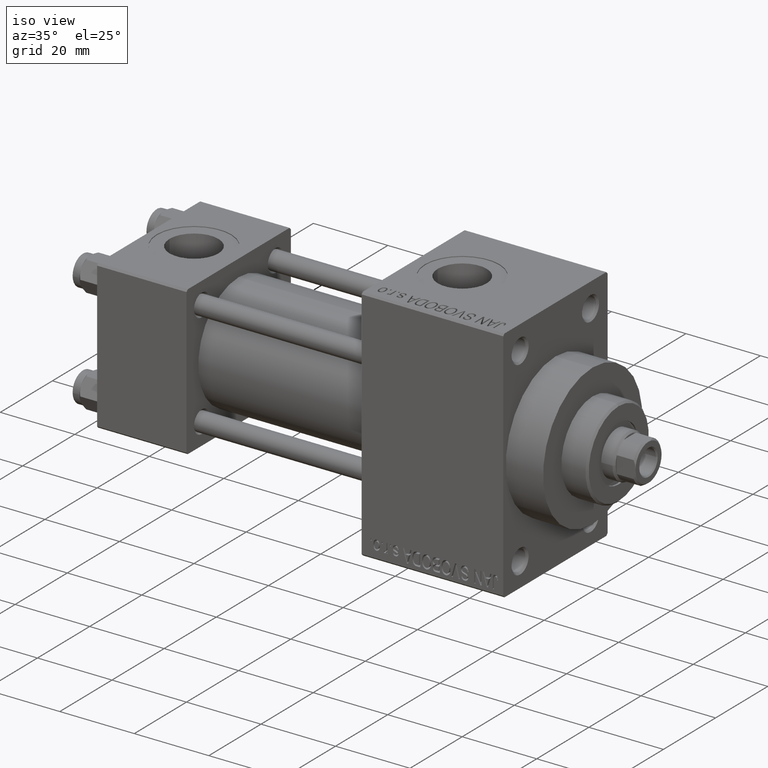
[diagram: clean part render]
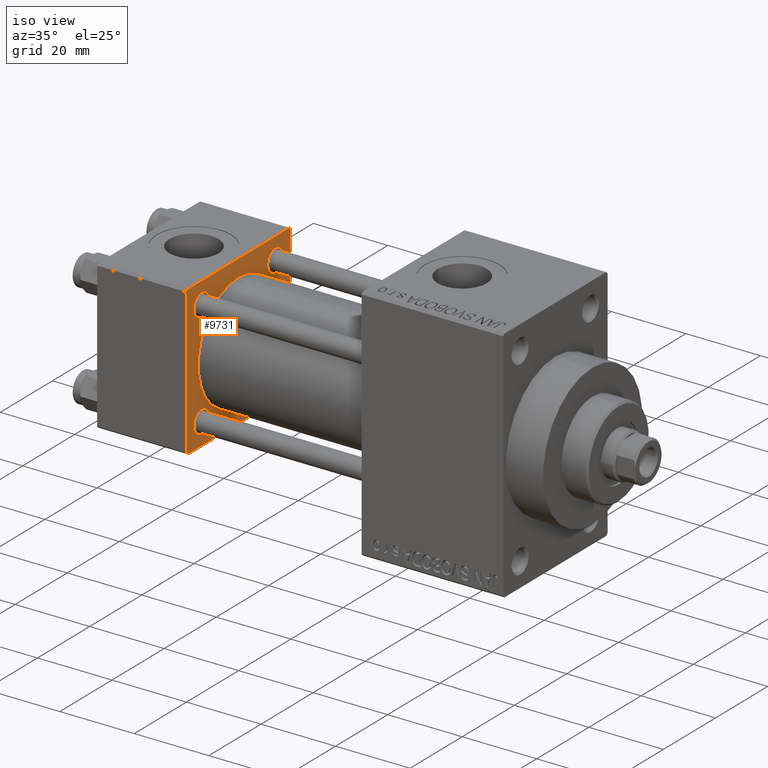
[diagram: same view with one face highlighted and labeled with its STEP entity id]
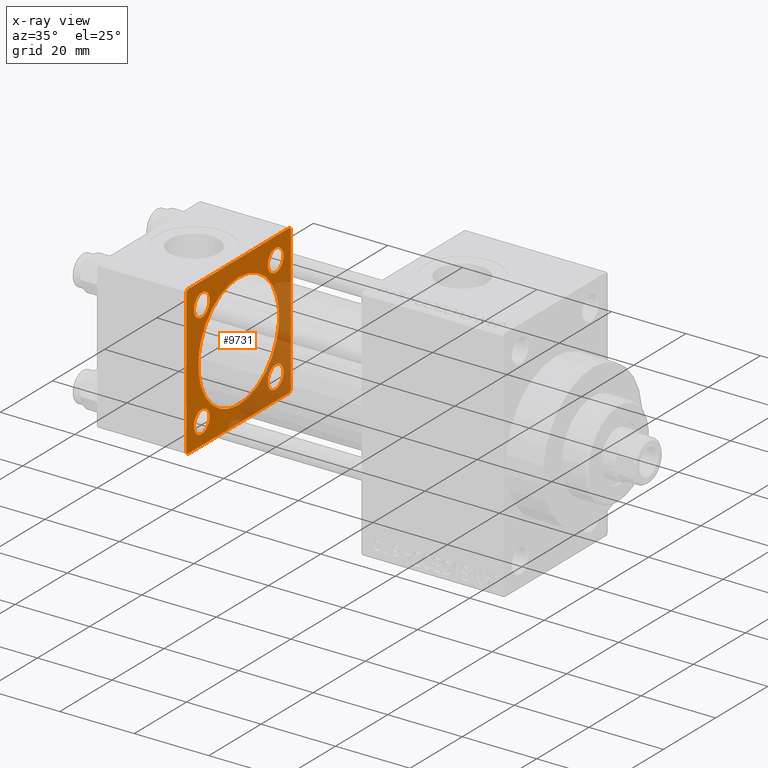
[diagram: x-ray of the same camera — body ghosted, the highlighted face saturated]
A machine part, iso view. The second image highlights one B-rep face of the part: STEP entity #9731.
The next image is the same camera in x-ray: the body ghosted, the highlighted face saturated — about 30% of this face is hidden behind the body in this view.
In plain terms, the highlighted planar face has unit normal (-1, 0, 0).
Its self-contained STEP definition (entity closure, byte-faithful):
#61 = VERTEX_POINT ( 'NONE', #25710 ) ;
#901 = EDGE_CURVE ( 'NONE', #31542, #16962, #4301, .T. ) ;
#1168 = LINE ( 'NONE', #4012, #26812 ) ;
#1206 = CARTESIAN_POINT ( 'NONE',  ( 24.00000000000000000, 14.14999999999999858, 11.15000000000005365 ) ) ;
#1262 = CIRCLE ( 'NONE', #6594, 2.999999999999976463 ) ;
#1722 = EDGE_CURVE ( 'NONE', #61, #27730, #8232, .T. ) ;
#2106 = VERTEX_POINT ( 'NONE', #26173 ) ;
#2162 = ORIENTED_EDGE ( 'NONE', *, *, #39699, .T. ) ;
#2464 = CARTESIAN_POINT ( 'NONE',  ( 24.00000000000000000, 20.00000000000000000, -19.50000000000002132 ) ) ;
#2469 = AXIS2_PLACEMENT_3D ( 'NONE', #13292, #42334, #9730 ) ;
#2733 = CARTESIAN_POINT ( 'NONE',  ( 24.00000000000000000, 14.14999999999999858, 14.15000000000000036 ) ) ;
#2842 = DIRECTION ( 'NONE',  ( 0.000000000000000000, -0.7071067811865425767, 0.7071067811865525687 ) ) ;
#3240 = CARTESIAN_POINT ( 'NONE',  ( 24.00000000000000000, 20.00000000000000000, 20.00000000000000000 ) ) ;
#3661 = CARTESIAN_POINT ( 'NONE',  ( 24.00000000000000000, -2.602085213965210642E-15, 0.000000000000000000 ) ) ;
#3776 = DIRECTION ( 'NONE',  ( -0.000000000000000000, -0.7071067811865500152, -0.7071067811865451302 ) ) ;
#4012 = CARTESIAN_POINT ( 'NONE',  ( 24.00000000000000000, -20.00000000000000355, 19.49999999999998224 ) ) ;
#4301 = LINE ( 'NONE', #28843, #17314 ) ;
#4715 = DIRECTION ( 'NONE',  ( 0.000000000000000000, -1.000000000000000000, -2.602085213965210149E-16 ) ) ;
#5396 = CIRCLE ( 'NONE', #20596, 2.999999999999976463 ) ;
#5531 = FACE_BOUND ( 'NONE', #27579, .T. ) ;
#5767 = FACE_BOUND ( 'NONE', #8398, .T. ) ;
#5785 = CARTESIAN_POINT ( 'NONE',  ( 24.00000000000000000, 20.00000000000000000, 19.49999999999999289 ) ) ;
#6236 = VECTOR ( 'NONE', #4715, 1000.000000000000000 ) ;
#6594 = AXIS2_PLACEMENT_3D ( 'NONE', #15559, #22475, #33428 ) ;
#6695 = EDGE_CURVE ( 'NONE', #22353, #45691, #1168, .T. ) ;
#7267 = AXIS2_PLACEMENT_3D ( 'NONE', #11672, #37628, #8100 ) ;
#7475 = DIRECTION ( 'NONE',  ( 1.000000000000000000, 0.000000000000000000, 0.000000000000000000 ) ) ;
#7614 = ORIENTED_EDGE ( 'NONE', *, *, #42552, .T. ) ;
#7694 = ORIENTED_EDGE ( 'NONE', *, *, #10138, .F. ) ;
#8100 = DIRECTION ( 'NONE',  ( 0.000000000000000000, 0.000000000000000000, 1.000000000000000000 ) ) ;
#8232 = CIRCLE ( 'NONE', #13533, 15.50000000000000000 ) ;
#8398 = EDGE_LOOP ( 'NONE', ( #2162, #13437 ) ) ;
#8543 = CARTESIAN_POINT ( 'NONE',  ( 24.00000000000000000, 14.14999999999999858, -17.14999999999994884 ) ) ;
#8879 = DIRECTION ( 'NONE',  ( -1.000000000000000000, 0.000000000000000000, -0.000000000000000000 ) ) ;
#9730 = DIRECTION ( 'NONE',  ( 0.000000000000000000, 0.000000000000000000, 1.000000000000000000 ) ) ;
#9731 = ADVANCED_FACE ( 'NONE', ( #12450, #5531, #16722, #5767, #30544, #26981 ), #14031, .F. ) ;
#9856 = CARTESIAN_POINT ( 'NONE',  ( 24.00000000000000000, -14.14999999999999503, 11.15000000000002878 ) ) ;
#10028 = CARTESIAN_POINT ( 'NONE',  ( 24.00000000000000000, -14.14999999999999503, 14.15000000000000391 ) ) ;
#10113 = DIRECTION ( 'NONE',  ( 0.000000000000000000, 0.000000000000000000, 1.000000000000000000 ) ) ;
#10138 = EDGE_CURVE ( 'NONE', #11351, #40199, #21581, .T. ) ;
#10576 = ORIENTED_EDGE ( 'NONE', *, *, #6695, .T. ) ;
#10692 = VECTOR ( 'NONE', #42873, 1000.000000000000000 ) ;
#11351 = VERTEX_POINT ( 'NONE', #5785 ) ;
#11672 = CARTESIAN_POINT ( 'NONE',  ( 24.00000000000000000, -2.602085213965210642E-15, 0.000000000000000000 ) ) ;
#12311 = CARTESIAN_POINT ( 'NONE',  ( 24.00000000000000000, -19.49999999999999289, 19.99999999999998934 ) ) ;
#12450 = FACE_BOUND ( 'NONE', #26435, .T. ) ;
#13292 = CARTESIAN_POINT ( 'NONE',  ( 24.00000000000000000, 14.14999999999999858, 14.15000000000000036 ) ) ;
#13318 = CARTESIAN_POINT ( 'NONE',  ( 24.00000000000000000, 19.50000000000000000, 20.00000000000000000 ) ) ;
#13437 = ORIENTED_EDGE ( 'NONE', *, *, #20389, .T. ) ;
#13533 = AXIS2_PLACEMENT_3D ( 'NONE', #3661, #7475, #14390 ) ;
#13596 = LINE ( 'NONE', #28354, #10692 ) ;
#14013 = EDGE_CURVE ( 'NONE', #42551, #17690, #14853, .T. ) ;
#14031 = PLANE ( 'NONE',  #43590 ) ;
#14390 = DIRECTION ( 'NONE',  ( 0.000000000000000000, 0.000000000000000000, 1.000000000000000000 ) ) ;
#14853 = CIRCLE ( 'NONE', #25501, 2.999999999999976463 ) ;
#14869 = CARTESIAN_POINT ( 'NONE',  ( 24.00000000000000000, -14.14999999999999503, -17.14999999999998082 ) ) ;
#15302 = CARTESIAN_POINT ( 'NONE',  ( 24.00000000000000000, -20.00000000000000355, 19.49999999999998224 ) ) ;
#15559 = CARTESIAN_POINT ( 'NONE',  ( 24.00000000000000000, -14.14999999999999503, -14.15000000000000391 ) ) ;
#15679 = AXIS2_PLACEMENT_3D ( 'NONE', #21749, #39601, #17478 ) ;
#15712 = CIRCLE ( 'NONE', #15679, 2.999999999999945377 ) ;
#15784 = EDGE_CURVE ( 'NONE', #27730, #61, #20991, .T. ) ;
#15923 = EDGE_CURVE ( 'NONE', #11351, #28815, #46407, .T. ) ;
#16627 = CIRCLE ( 'NONE', #37901, 2.999999999999945377 ) ;
#16653 = EDGE_CURVE ( 'NONE', #46396, #37161, #15712, .T. ) ;
#16719 = VERTEX_POINT ( 'NONE', #37215 ) ;
#16722 = FACE_BOUND ( 'NONE', #17488, .T. ) ;
#16962 = VERTEX_POINT ( 'NONE', #42644 ) ;
#17041 = LINE ( 'NONE', #20851, #19910 ) ;
#17102 = VERTEX_POINT ( 'NONE', #1206 ) ;
#17314 = VECTOR ( 'NONE', #33129, 1000.000000000000000 ) ;
#17478 = DIRECTION ( 'NONE',  ( 0.000000000000000000, 0.000000000000000000, 1.000000000000000000 ) ) ;
#17488 = EDGE_LOOP ( 'NONE', ( #7614, #27377 ) ) ;
#17690 = VERTEX_POINT ( 'NONE', #14869 ) ;
#18711 = CARTESIAN_POINT ( 'NONE',  ( 24.00000000000000000, -14.14999999999999503, 14.15000000000000391 ) ) ;
#18976 = CARTESIAN_POINT ( 'NONE',  ( 24.00000000000000000, 14.14999999999999858, -14.15000000000000036 ) ) ;
#19458 = VECTOR ( 'NONE', #2842, 999.9999999999998863 ) ;
#19910 = VECTOR ( 'NONE', #31570, 1000.000000000000000 ) ;
#20389 = EDGE_CURVE ( 'NONE', #2106, #17102, #43157, .T. ) ;
#20575 = EDGE_CURVE ( 'NONE', #17690, #42551, #1262, .T. ) ;
#20596 = AXIS2_PLACEMENT_3D ( 'NONE', #10028, #24098, #27897 ) ;
#20851 = CARTESIAN_POINT ( 'NONE',  ( 24.00000000000000000, -20.00000000000000355, 19.99999999999998934 ) ) ;
#20937 = ORIENTED_EDGE ( 'NONE', *, *, #35197, .T. ) ;
#20991 = CIRCLE ( 'NONE', #7267, 15.50000000000000000 ) ;
#21503 = CIRCLE ( 'NONE', #2469, 2.999999999999945377 ) ;
#21581 = LINE ( 'NONE', #3240, #31456 ) ;
#21749 = CARTESIAN_POINT ( 'NONE',  ( 24.00000000000000000, 14.14999999999999858, -14.15000000000000036 ) ) ;
#22353 = VERTEX_POINT ( 'NONE', #12311 ) ;
#22475 = DIRECTION ( 'NONE',  ( -1.000000000000000000, -0.000000000000000000, -0.000000000000000000 ) ) ;
#22477 = ORIENTED_EDGE ( 'NONE', *, *, #15784, .F. ) ;
#22592 = LINE ( 'NONE', #37339, #6236 ) ;
#22642 = AXIS2_PLACEMENT_3D ( 'NONE', #2733, #31557, #10113 ) ;
#24098 = DIRECTION ( 'NONE',  ( -1.000000000000000000, -0.000000000000000000, -0.000000000000000000 ) ) ;
#25330 = ORIENTED_EDGE ( 'NONE', *, *, #901, .T. ) ;
#25417 = EDGE_CURVE ( 'NONE', #37161, #46396, #16627, .T. ) ;
#25501 = AXIS2_PLACEMENT_3D ( 'NONE', #35388, #46332, #25543 ) ;
#25543 = DIRECTION ( 'NONE',  ( 0.000000000000000000, 0.000000000000000000, 1.000000000000000000 ) ) ;
#25710 = CARTESIAN_POINT ( 'NONE',  ( 24.00000000000000000, -7.038826752868131828E-16, -15.50000000000000000 ) ) ;
#26173 = CARTESIAN_POINT ( 'NONE',  ( 24.00000000000000000, 14.14999999999999858, 17.14999999999994884 ) ) ;
#26435 = EDGE_LOOP ( 'NONE', ( #40524, #35279 ) ) ;
#26805 = VERTEX_POINT ( 'NONE', #9856 ) ;
#26812 = VECTOR ( 'NONE', #3776, 1000.000000000000114 ) ;
#26981 = FACE_OUTER_BOUND ( 'NONE', #31895, .T. ) ;
#27377 = ORIENTED_EDGE ( 'NONE', *, *, #32723, .T. ) ;
#27579 = EDGE_LOOP ( 'NONE', ( #37589, #27601 ) ) ;
#27593 = ORIENTED_EDGE ( 'NONE', *, *, #39501, .T. ) ;
#27601 = ORIENTED_EDGE ( 'NONE', *, *, #16653, .T. ) ;
#27730 = VERTEX_POINT ( 'NONE', #43394 ) ;
#27897 = DIRECTION ( 'NONE',  ( 0.000000000000000000, 0.000000000000000000, 1.000000000000000000 ) ) ;
#28354 = CARTESIAN_POINT ( 'NONE',  ( 24.00000000000000000, 20.00000000000000000, -20.00000000000000711 ) ) ;
#28815 = VERTEX_POINT ( 'NONE', #28931 ) ;
#28843 = CARTESIAN_POINT ( 'NONE',  ( 24.00000000000000000, -19.50000000000000711, -20.00000000000000000 ) ) ;
#28931 = CARTESIAN_POINT ( 'NONE',  ( 24.00000000000000000, 19.50000000000000000, 20.00000000000000000 ) ) ;
#29992 = LINE ( 'NONE', #36413, #40470 ) ;
#30008 = VERTEX_POINT ( 'NONE', #38438 ) ;
#30544 = FACE_BOUND ( 'NONE', #37227, .T. ) ;
#31456 = VECTOR ( 'NONE', #32540, 1000.000000000000000 ) ;
#31542 = VERTEX_POINT ( 'NONE', #40038 ) ;
#31557 = DIRECTION ( 'NONE',  ( -1.000000000000000000, -0.000000000000000000, -0.000000000000000000 ) ) ;
#31570 = DIRECTION ( 'NONE',  ( 0.000000000000000000, 8.673617379884036705E-17, -1.000000000000000000 ) ) ;
#31895 = EDGE_LOOP ( 'NONE', ( #40302, #27593, #7694, #44276, #20937, #10576, #34212, #25330 ) ) ;
#32206 = CIRCLE ( 'NONE', #36005, 2.999999999999976463 ) ;
#32540 = DIRECTION ( 'NONE',  ( 0.000000000000000000, 0.000000000000000000, -1.000000000000000000 ) ) ;
#32720 = EDGE_CURVE ( 'NONE', #16719, #16962, #13596, .T. ) ;
#32723 = EDGE_CURVE ( 'NONE', #30008, #26805, #5396, .T. ) ;
#33129 = DIRECTION ( 'NONE',  ( 0.000000000000000000, 0.7071067811865401342, -0.7071067811865549002 ) ) ;
#33253 = DIRECTION ( 'NONE',  ( -1.000000000000000000, -0.000000000000000000, -0.000000000000000000 ) ) ;
#33428 = DIRECTION ( 'NONE',  ( 0.000000000000000000, 0.000000000000000000, 1.000000000000000000 ) ) ;
#34212 = ORIENTED_EDGE ( 'NONE', *, *, #37736, .T. ) ;
#34661 = DIRECTION ( 'NONE',  ( 0.000000000000000000, 0.000000000000000000, 1.000000000000000000 ) ) ;
#35197 = EDGE_CURVE ( 'NONE', #28815, #22353, #22592, .T. ) ;
#35279 = ORIENTED_EDGE ( 'NONE', *, *, #14013, .T. ) ;
#35388 = CARTESIAN_POINT ( 'NONE',  ( 24.00000000000000000, -14.14999999999999503, -14.15000000000000391 ) ) ;
#36005 = AXIS2_PLACEMENT_3D ( 'NONE', #18711, #33253, #34661 ) ;
#36413 = CARTESIAN_POINT ( 'NONE',  ( 24.00000000000000000, 20.00000000000000000, -19.50000000000002132 ) ) ;
#36578 = ORIENTED_EDGE ( 'NONE', *, *, #1722, .F. ) ;
#36812 = CARTESIAN_POINT ( 'NONE',  ( 24.00000000000000000, -14.14999999999999503, -11.15000000000002878 ) ) ;
#37161 = VERTEX_POINT ( 'NONE', #8543 ) ;
#37215 = CARTESIAN_POINT ( 'NONE',  ( 24.00000000000000000, 19.50000000000000711, -20.00000000000000711 ) ) ;
#37227 = EDGE_LOOP ( 'NONE', ( #22477, #36578 ) ) ;
#37339 = CARTESIAN_POINT ( 'NONE',  ( 24.00000000000000000, 20.00000000000000000, 20.00000000000000000 ) ) ;
#37552 = DIRECTION ( 'NONE',  ( 0.000000000000000000, 0.000000000000000000, 1.000000000000000000 ) ) ;
#37589 = ORIENTED_EDGE ( 'NONE', *, *, #25417, .T. ) ;
#37628 = DIRECTION ( 'NONE',  ( 1.000000000000000000, 0.000000000000000000, 0.000000000000000000 ) ) ;
#37736 = EDGE_CURVE ( 'NONE', #45691, #31542, #17041, .T. ) ;
#37752 = CARTESIAN_POINT ( 'NONE',  ( 24.00000000000000000, 14.14999999999999858, -11.15000000000005365 ) ) ;
#37901 = AXIS2_PLACEMENT_3D ( 'NONE', #18976, #40383, #37552 ) ;
#37922 = CARTESIAN_POINT ( 'NONE',  ( 24.00000000000000000, 0.000000000000000000, 0.000000000000000000 ) ) ;
#38386 = DIRECTION ( 'NONE',  ( -0.000000000000000000, 0.000000000000000000, 1.000000000000000000 ) ) ;
#38438 = CARTESIAN_POINT ( 'NONE',  ( 24.00000000000000000, -14.14999999999999503, 17.14999999999998082 ) ) ;
#39501 = EDGE_CURVE ( 'NONE', #16719, #40199, #29992, .T. ) ;
#39601 = DIRECTION ( 'NONE',  ( -1.000000000000000000, -0.000000000000000000, -0.000000000000000000 ) ) ;
#39699 = EDGE_CURVE ( 'NONE', #17102, #2106, #21503, .T. ) ;
#40038 = CARTESIAN_POINT ( 'NONE',  ( 24.00000000000000000, -20.00000000000000000, -19.49999999999999645 ) ) ;
#40199 = VERTEX_POINT ( 'NONE', #2464 ) ;
#40302 = ORIENTED_EDGE ( 'NONE', *, *, #32720, .F. ) ;
#40383 = DIRECTION ( 'NONE',  ( -1.000000000000000000, -0.000000000000000000, -0.000000000000000000 ) ) ;
#40470 = VECTOR ( 'NONE', #44499, 1000.000000000000000 ) ;
#40524 = ORIENTED_EDGE ( 'NONE', *, *, #20575, .T. ) ;
#42334 = DIRECTION ( 'NONE',  ( -1.000000000000000000, -0.000000000000000000, -0.000000000000000000 ) ) ;
#42551 = VERTEX_POINT ( 'NONE', #36812 ) ;
#42552 = EDGE_CURVE ( 'NONE', #26805, #30008, #32206, .T. ) ;
#42644 = CARTESIAN_POINT ( 'NONE',  ( 24.00000000000000000, -19.50000000000000711, -20.00000000000000000 ) ) ;
#42873 = DIRECTION ( 'NONE',  ( 0.000000000000000000, -1.000000000000000000, 1.734723475976807094E-16 ) ) ;
#43157 = CIRCLE ( 'NONE', #22642, 2.999999999999945377 ) ;
#43394 = CARTESIAN_POINT ( 'NONE',  ( 24.00000000000000000, -2.602085213965210642E-15, 15.50000000000000000 ) ) ;
#43590 = AXIS2_PLACEMENT_3D ( 'NONE', #37922, #8879, #38386 ) ;
#44276 = ORIENTED_EDGE ( 'NONE', *, *, #15923, .T. ) ;
#44499 = DIRECTION ( 'NONE',  ( -0.000000000000000000, 0.7071067811865524577, 0.7071067811865426878 ) ) ;
#45691 = VERTEX_POINT ( 'NONE', #15302 ) ;
#46332 = DIRECTION ( 'NONE',  ( -1.000000000000000000, -0.000000000000000000, -0.000000000000000000 ) ) ;
#46396 = VERTEX_POINT ( 'NONE', #37752 ) ;
#46407 = LINE ( 'NONE', #13318, #19458 ) ;